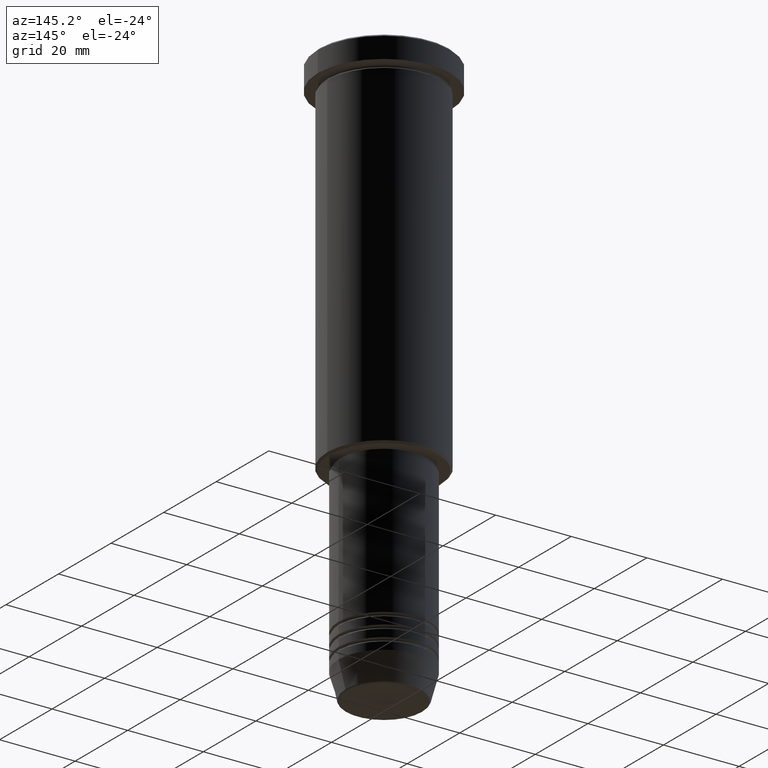
[diagram: clean part render]
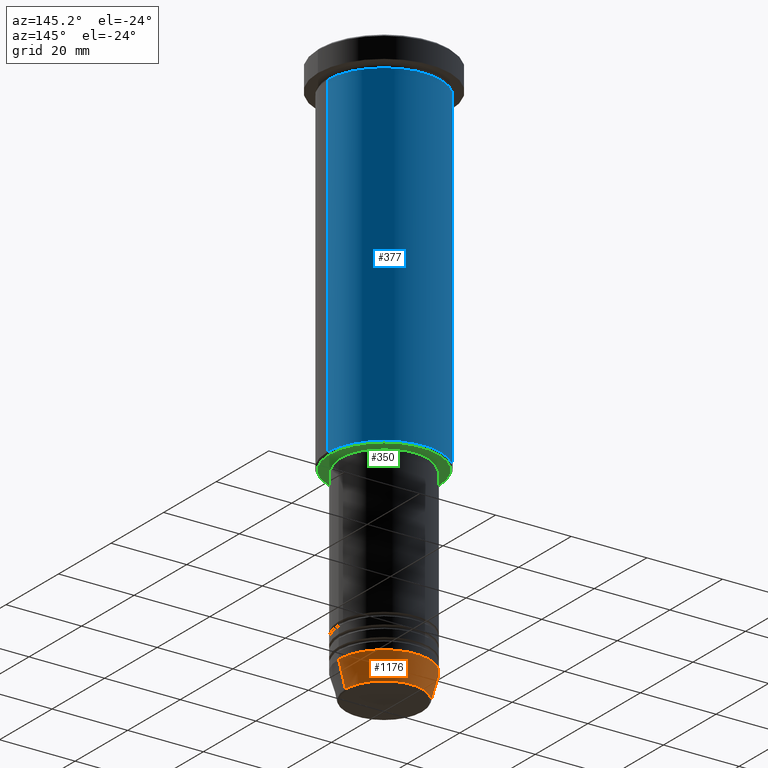
[diagram: same view with three faces highlighted in distinct colors, each labeled with its STEP entity id]
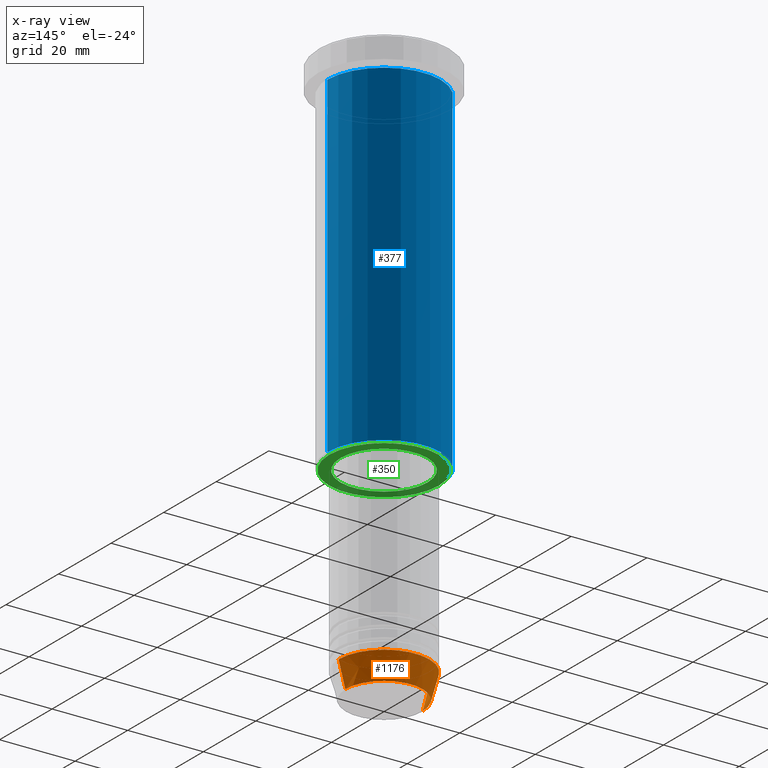
[diagram: x-ray of the same camera — body ghosted, the three highlighted faces saturated]
A machine part, auxiliary view with three faces highlighted in distinct colors.
The next image is the same camera in x-ray (body ghosted, the three faces saturated) — at least one of them is partly hidden behind the body in this view.
Their STEP definitions:

[orange] entity #1176 — the highlighted conical surface has half-angle 15 deg.
#132 = CARTESIAN_POINT ( 'NONE',  ( 12.00000000000000000, 0.000000000000000000, -144.0000000000000284 ) ) ;
#151 = CARTESIAN_POINT ( 'NONE',  ( 0.000000000000000000, 0.000000000000000000, -144.0000000000000284 ) ) ;
#203 = EDGE_CURVE ( 'NONE', #983, #988, #474, .T. ) ;
#206 = CARTESIAN_POINT ( 'NONE',  ( -10.22365507213719127, 1.360806402472382744E-15, -150.6294095225512706 ) ) ;
#221 = CARTESIAN_POINT ( 'NONE',  ( -12.00000000000000000, 1.469576158976823947E-15, -144.0000000000000284 ) ) ;
#240 = DIRECTION ( 'NONE',  ( -0.000000000000000000, -0.000000000000000000, 1.000000000000000000 ) ) ;
#270 = CARTESIAN_POINT ( 'NONE',  ( 0.000000000000000000, 0.000000000000000000, -150.6294095225512706 ) ) ;
#293 = DIRECTION ( 'NONE',  ( -0.2588190451025213501, 3.169619151431772337E-17, 0.9659258262890680902 ) ) ;
#298 = AXIS2_PLACEMENT_3D ( 'NONE', #570, #675, #581 ) ;
#348 = EDGE_CURVE ( 'NONE', #634, #562, #418, .T. ) ;
#383 = ORIENTED_EDGE ( 'NONE', *, *, #203, .T. ) ;
#418 = LINE ( 'NONE', #873, #437 ) ;
#437 = VECTOR ( 'NONE', #1154, 1000.000000000000000 ) ;
#474 = LINE ( 'NONE', #746, #1169 ) ;
#490 = CIRCLE ( 'NONE', #1038, 10.22365507213719127 ) ;
#518 = ORIENTED_EDGE ( 'NONE', *, *, #1035, .F. ) ;
#545 = DIRECTION ( 'NONE',  ( -0.000000000000000000, -0.000000000000000000, 1.000000000000000000 ) ) ;
#550 = AXIS2_PLACEMENT_3D ( 'NONE', #151, #240, #780 ) ;
#562 = VERTEX_POINT ( 'NONE', #132 ) ;
#570 = CARTESIAN_POINT ( 'NONE',  ( 0.000000000000000000, 0.000000000000000000, -144.0000000000000284 ) ) ;
#581 = DIRECTION ( 'NONE',  ( 1.000000000000000000, 0.000000000000000000, 0.000000000000000000 ) ) ;
#634 = VERTEX_POINT ( 'NONE', #1045 ) ;
#675 = DIRECTION ( 'NONE',  ( -0.000000000000000000, -0.000000000000000000, 1.000000000000000000 ) ) ;
#745 = ORIENTED_EDGE ( 'NONE', *, *, #839, .T. ) ;
#746 = CARTESIAN_POINT ( 'NONE',  ( -12.00000000000000000, 1.469576158976823947E-15, -144.0000000000000284 ) ) ;
#780 = DIRECTION ( 'NONE',  ( 1.000000000000000000, 0.000000000000000000, 0.000000000000000000 ) ) ;
#815 = CIRCLE ( 'NONE', #298, 12.00000000000000000 ) ;
#816 = CONICAL_SURFACE ( 'NONE', #550, 12.00000000000000000, 0.2617993877991500740 ) ;
#823 = DIRECTION ( 'NONE',  ( 1.000000000000000000, 0.000000000000000000, 0.000000000000000000 ) ) ;
#839 = EDGE_CURVE ( 'NONE', #634, #983, #490, .T. ) ;
#873 = CARTESIAN_POINT ( 'NONE',  ( 12.00000000000000000, 0.000000000000000000, -144.0000000000000284 ) ) ;
#983 = VERTEX_POINT ( 'NONE', #206 ) ;
#988 = VERTEX_POINT ( 'NONE', #221 ) ;
#995 = EDGE_LOOP ( 'NONE', ( #745, #383, #518, #1128 ) ) ;
#1035 = EDGE_CURVE ( 'NONE', #562, #988, #815, .T. ) ;
#1038 = AXIS2_PLACEMENT_3D ( 'NONE', #270, #545, #823 ) ;
#1045 = CARTESIAN_POINT ( 'NONE',  ( 10.22365507213719127, 0.000000000000000000, -150.6294095225512706 ) ) ;
#1128 = ORIENTED_EDGE ( 'NONE', *, *, #348, .F. ) ;
#1144 = FACE_OUTER_BOUND ( 'NONE', #995, .T. ) ;
#1154 = DIRECTION ( 'NONE',  ( 0.2588190451025213501, 0.000000000000000000, 0.9659258262890680902 ) ) ;
#1169 = VECTOR ( 'NONE', #293, 1000.000000000000000 ) ;
#1176 = ADVANCED_FACE ( 'NONE', ( #1144 ), #816, .T. ) ;

[blue] entity #377 — the highlighted cylindrical surface (partial cylindrical patch) has radius 15 mm, axis along (-0, -0, 1).
#53 = AXIS2_PLACEMENT_3D ( 'NONE', #743, #1008, #654 ) ;
#91 = DIRECTION ( 'NONE',  ( 1.000000000000000000, 0.000000000000000000, 0.000000000000000000 ) ) ;
#173 = LINE ( 'NONE', #192, #205 ) ;
#178 = ORIENTED_EDGE ( 'NONE', *, *, #788, .F. ) ;
#182 = VECTOR ( 'NONE', #236, 1000.000000000000000 ) ;
#186 = DIRECTION ( 'NONE',  ( 1.000000000000000000, 0.000000000000000000, 0.000000000000000000 ) ) ;
#192 = CARTESIAN_POINT ( 'NONE',  ( 15.00000000000000000, 0.000000000000000000, 0.000000000000000000 ) ) ;
#205 = VECTOR ( 'NONE', #553, 1000.000000000000000 ) ;
#215 = EDGE_LOOP ( 'NONE', ( #539, #311, #178, #264 ) ) ;
#236 = DIRECTION ( 'NONE',  ( -0.000000000000000000, -0.000000000000000000, 1.000000000000000000 ) ) ;
#264 = ORIENTED_EDGE ( 'NONE', *, *, #819, .F. ) ;
#273 = CYLINDRICAL_SURFACE ( 'NONE', #1075, 15.00000000000000000 ) ;
#311 = ORIENTED_EDGE ( 'NONE', *, *, #567, .T. ) ;
#314 = CARTESIAN_POINT ( 'NONE',  ( -15.00000000000000000, 1.836970198721029589E-15, 0.000000000000000000 ) ) ;
#349 = CARTESIAN_POINT ( 'NONE',  ( -15.00000000000000000, 1.836970198721029589E-15, -6.999999999999995559 ) ) ;
#365 = AXIS2_PLACEMENT_3D ( 'NONE', #370, #452, #186 ) ;
#370 = CARTESIAN_POINT ( 'NONE',  ( 0.000000000000000000, 0.000000000000000000, -6.999999999999995559 ) ) ;
#377 = ADVANCED_FACE ( 'NONE', ( #635 ), #273, .T. ) ;
#452 = DIRECTION ( 'NONE',  ( -0.000000000000000000, -0.000000000000000000, 1.000000000000000000 ) ) ;
#475 = CARTESIAN_POINT ( 'NONE',  ( -15.00000000000000000, 1.836970198721029589E-15, -95.50000000000000000 ) ) ;
#503 = CARTESIAN_POINT ( 'NONE',  ( 15.00000000000000000, 0.000000000000000000, -95.50000000000000000 ) ) ;
#522 = CARTESIAN_POINT ( 'NONE',  ( 15.00000000000000000, 0.000000000000000000, -6.999999999999995559 ) ) ;
#539 = ORIENTED_EDGE ( 'NONE', *, *, #809, .T. ) ;
#553 = DIRECTION ( 'NONE',  ( -0.000000000000000000, -0.000000000000000000, 1.000000000000000000 ) ) ;
#567 = EDGE_CURVE ( 'NONE', #975, #639, #764, .T. ) ;
#614 = CARTESIAN_POINT ( 'NONE',  ( 0.000000000000000000, 0.000000000000000000, 0.000000000000000000 ) ) ;
#635 = FACE_OUTER_BOUND ( 'NONE', #215, .T. ) ;
#639 = VERTEX_POINT ( 'NONE', #349 ) ;
#654 = DIRECTION ( 'NONE',  ( -1.000000000000000000, 0.000000000000000000, 0.000000000000000000 ) ) ;
#700 = VERTEX_POINT ( 'NONE', #522 ) ;
#743 = CARTESIAN_POINT ( 'NONE',  ( 0.000000000000000000, 0.000000000000000000, -95.50000000000000000 ) ) ;
#764 = LINE ( 'NONE', #314, #182 ) ;
#788 = EDGE_CURVE ( 'NONE', #700, #639, #869, .T. ) ;
#809 = EDGE_CURVE ( 'NONE', #1065, #975, #1081, .T. ) ;
#819 = EDGE_CURVE ( 'NONE', #1065, #700, #173, .T. ) ;
#869 = CIRCLE ( 'NONE', #365, 15.00000000000000000 ) ;
#975 = VERTEX_POINT ( 'NONE', #475 ) ;
#985 = DIRECTION ( 'NONE',  ( -0.000000000000000000, -0.000000000000000000, 1.000000000000000000 ) ) ;
#1008 = DIRECTION ( 'NONE',  ( -0.000000000000000000, -0.000000000000000000, 1.000000000000000000 ) ) ;
#1065 = VERTEX_POINT ( 'NONE', #503 ) ;
#1075 = AXIS2_PLACEMENT_3D ( 'NONE', #614, #985, #91 ) ;
#1081 = CIRCLE ( 'NONE', #53, 15.00000000000000000 ) ;

[green] entity #350 — the highlighted planar face has unit normal (0, 0, -1).
#50 = AXIS2_PLACEMENT_3D ( 'NONE', #972, #706, #1057 ) ;
#66 = CARTESIAN_POINT ( 'NONE',  ( 0.000000000000000000, 0.000000000000000000, -96.00000000000000000 ) ) ;
#72 = DIRECTION ( 'NONE',  ( 0.000000000000000000, 0.000000000000000000, -1.000000000000000000 ) ) ;
#125 = VERTEX_POINT ( 'NONE', #127 ) ;
#127 = CARTESIAN_POINT ( 'NONE',  ( -14.49999999999999645, 1.806354028742345802E-15, -96.00000000000000000 ) ) ;
#156 = DIRECTION ( 'NONE',  ( 1.000000000000000000, 0.000000000000000000, 0.000000000000000000 ) ) ;
#249 = DIRECTION ( 'NONE',  ( -1.000000000000000000, 0.000000000000000000, -0.000000000000000000 ) ) ;
#260 = DIRECTION ( 'NONE',  ( -0.000000000000000000, -0.000000000000000000, 1.000000000000000000 ) ) ;
#338 = DIRECTION ( 'NONE',  ( 0.000000000000000000, 0.000000000000000000, -1.000000000000000000 ) ) ;
#346 = FACE_BOUND ( 'NONE', #731, .T. ) ;
#350 = ADVANCED_FACE ( 'NONE', ( #779, #346 ), #428, .T. ) ;
#364 = ORIENTED_EDGE ( 'NONE', *, *, #730, .T. ) ;
#385 = VERTEX_POINT ( 'NONE', #446 ) ;
#397 = CIRCLE ( 'NONE', #905, 11.50000000000000000 ) ;
#401 = EDGE_CURVE ( 'NONE', #385, #125, #1130, .T. ) ;
#428 = PLANE ( 'NONE',  #529 ) ;
#446 = CARTESIAN_POINT ( 'NONE',  ( 14.49999999999999645, 0.000000000000000000, -96.00000000000000000 ) ) ;
#470 = AXIS2_PLACEMENT_3D ( 'NONE', #627, #1056, #1068 ) ;
#486 = CIRCLE ( 'NONE', #50, 14.49999999999999645 ) ;
#513 = VERTEX_POINT ( 'NONE', #954 ) ;
#529 = AXIS2_PLACEMENT_3D ( 'NONE', #615, #338, #249 ) ;
#574 = ORIENTED_EDGE ( 'NONE', *, *, #401, .T. ) ;
#615 = CARTESIAN_POINT ( 'NONE',  ( 0.000000000000000000, 15.00000000000000000, -96.00000000000000000 ) ) ;
#626 = DIRECTION ( 'NONE',  ( -1.000000000000000000, 0.000000000000000000, 0.000000000000000000 ) ) ;
#627 = CARTESIAN_POINT ( 'NONE',  ( 0.000000000000000000, 0.000000000000000000, -96.00000000000000000 ) ) ;
#691 = EDGE_CURVE ( 'NONE', #1067, #513, #397, .T. ) ;
#706 = DIRECTION ( 'NONE',  ( 0.000000000000000000, 0.000000000000000000, -1.000000000000000000 ) ) ;
#730 = EDGE_CURVE ( 'NONE', #125, #385, #486, .T. ) ;
#731 = EDGE_LOOP ( 'NONE', ( #748, #962 ) ) ;
#748 = ORIENTED_EDGE ( 'NONE', *, *, #691, .T. ) ;
#779 = FACE_OUTER_BOUND ( 'NONE', #841, .T. ) ;
#841 = EDGE_LOOP ( 'NONE', ( #574, #364 ) ) ;
#905 = AXIS2_PLACEMENT_3D ( 'NONE', #66, #260, #156 ) ;
#954 = CARTESIAN_POINT ( 'NONE',  ( -11.50000000000000000, 1.408343819019456176E-15, -96.00000000000000000 ) ) ;
#962 = ORIENTED_EDGE ( 'NONE', *, *, #1051, .T. ) ;
#967 = CIRCLE ( 'NONE', #470, 11.50000000000000000 ) ;
#972 = CARTESIAN_POINT ( 'NONE',  ( 0.000000000000000000, 0.000000000000000000, -96.00000000000000000 ) ) ;
#976 = CARTESIAN_POINT ( 'NONE',  ( 11.50000000000000000, 0.000000000000000000, -96.00000000000000000 ) ) ;
#980 = CARTESIAN_POINT ( 'NONE',  ( 0.000000000000000000, 0.000000000000000000, -96.00000000000000000 ) ) ;
#1037 = AXIS2_PLACEMENT_3D ( 'NONE', #980, #72, #626 ) ;
#1051 = EDGE_CURVE ( 'NONE', #513, #1067, #967, .T. ) ;
#1056 = DIRECTION ( 'NONE',  ( -0.000000000000000000, -0.000000000000000000, 1.000000000000000000 ) ) ;
#1057 = DIRECTION ( 'NONE',  ( -1.000000000000000000, 0.000000000000000000, 0.000000000000000000 ) ) ;
#1067 = VERTEX_POINT ( 'NONE', #976 ) ;
#1068 = DIRECTION ( 'NONE',  ( 1.000000000000000000, 0.000000000000000000, 0.000000000000000000 ) ) ;
#1130 = CIRCLE ( 'NONE', #1037, 14.49999999999999645 ) ;